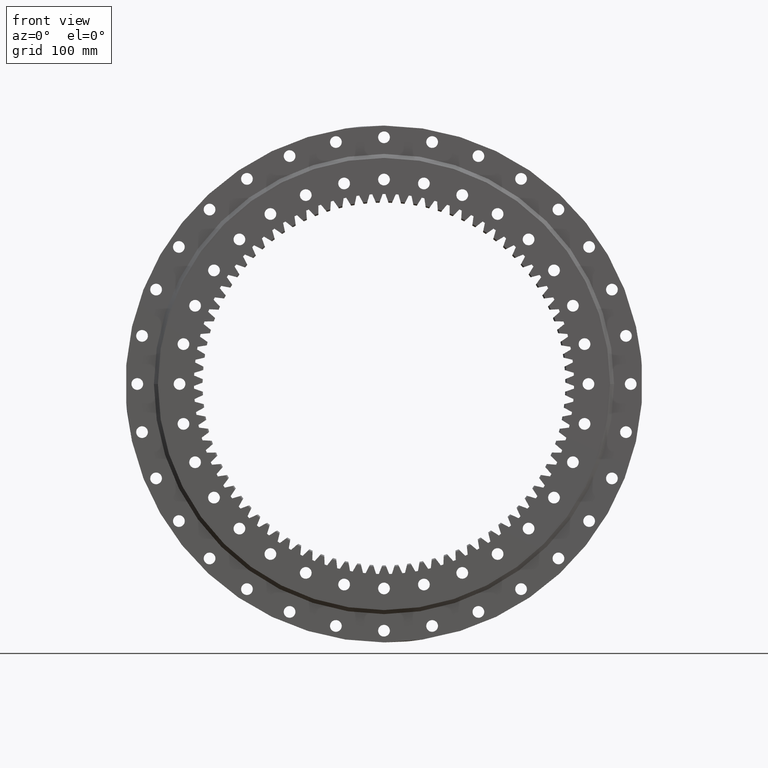
[diagram: clean part render]
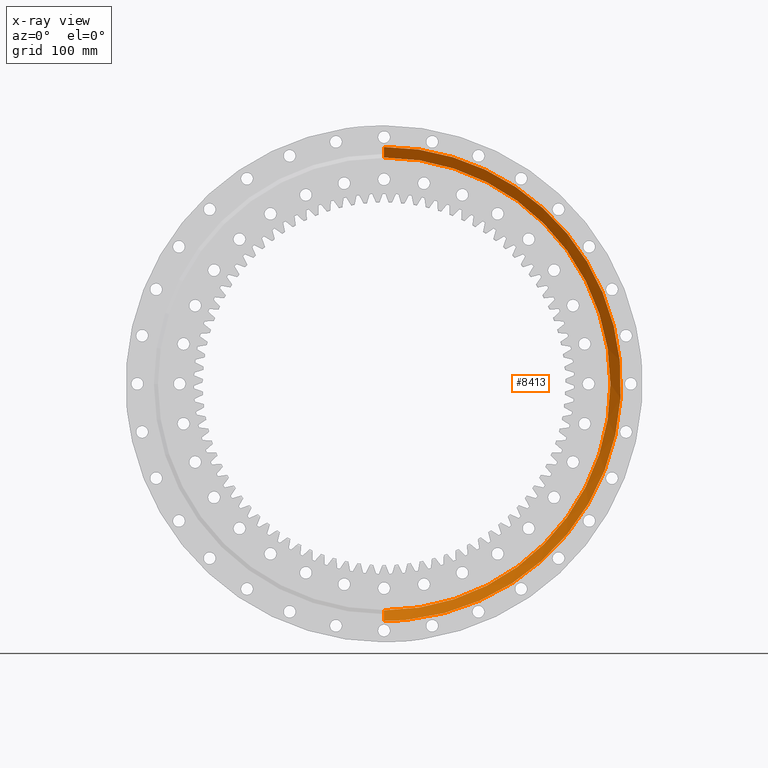
[diagram: x-ray — body ghosted, one internal face saturated and labeled with its STEP entity id]
A machine part, front view, then the same camera in x-ray: the body is ghosted and one INTERNAL B-rep face — a face not visible from any outside direction — is saturated and labeled: STEP entity #8413.
In plain terms, the highlighted conical surface has half-angle 45 deg.
Its self-contained STEP definition (entity closure, byte-faithful):
#273 = AXIS2_PLACEMENT_3D ( 'NONE', #3033, #2492, #16581 ) ;
#797 = DIRECTION ( 'NONE',  ( 1.222452380498864700E-016, -0.7071067811865465700, 0.7071067811865484600 ) ) ;
#2372 = ORIENTED_EDGE ( 'NONE', *, *, #25211, .F. ) ;
#2492 = DIRECTION ( 'NONE',  ( 1.173697223544192200E-016, -1.000000000000000000, -3.494217355385783800E-017 ) ) ;
#3033 = CARTESIAN_POINT ( 'NONE',  ( -8.299292658279184100E-017, 0.7071067811865450200, 2.470784786933003400E-017 ) ) ;
#3403 = EDGE_CURVE ( 'NONE', #6914, #12456, #12807, .T. ) ;
#3722 = CARTESIAN_POINT ( 'NONE',  ( -6.299221011738492400E-014, 0.7071067811865573400, -353.4705627484771100 ) ) ;
#4455 = CARTESIAN_POINT ( 'NONE',  ( 351.8526598586139500, 0.7071067811865146000, 33.78083006889617200 ) ) ;
#5579 = EDGE_CURVE ( 'NONE', #8385, #11852, #12713, .T. ) ;
#5786 = AXIS2_PLACEMENT_3D ( 'NONE', #21324, #20597, #21241 ) ;
#6038 = CARTESIAN_POINT ( 'NONE',  ( 351.8526598586139500, 0.7071067811865146000, 33.78083006889617200 ) ) ;
#6203 = EDGE_CURVE ( 'NONE', #19600, #18151, #9588, .T. ) ;
#6256 = ORIENTED_EDGE ( 'NONE', *, *, #5579, .T. ) ;
#6401 = DIRECTION ( 'NONE',  ( 5.551115123125782700E-017, -3.081670127567977400E-017, 1.000000000000000000 ) ) ;
#6670 = CARTESIAN_POINT ( 'NONE',  ( 1.682078031673055900E-014, 16.42766952966360000, 337.7500000000000000 ) ) ;
#6914 = VERTEX_POINT ( 'NONE', #4455 ) ;
#7208 = CARTESIAN_POINT ( 'NONE',  ( -6.265694948409837400E-014, 16.42766952966362100, -337.7500000000000000 ) ) ;
#8385 = VERTEX_POINT ( 'NONE', #20629 ) ;
#8413 = ADVANCED_FACE ( 'NONE', ( #17869 ), #17595, .F. ) ;
#8491 = CIRCLE ( 'NONE', #10818, 337.7500000000000000 ) ;
#9193 = DIRECTION ( 'NONE',  ( 1.173697223544192200E-016, -1.000000000000000000, -3.494217355385783800E-017 ) ) ;
#9427 = VECTOR ( 'NONE', #19773, 1000.000000000000000 ) ;
#9588 = LINE ( 'NONE', #20054, #9427 ) ;
#9789 = LINE ( 'NONE', #15715, #14365 ) ;
#10818 = AXIS2_PLACEMENT_3D ( 'NONE', #17760, #15462, #6401 ) ;
#11852 = VERTEX_POINT ( 'NONE', #16850 ) ;
#11906 = CARTESIAN_POINT ( 'NONE',  ( 35.51130782267793500, 0.7071067811865696700, -351.6822226761655100 ) ) ;
#12208 = CARTESIAN_POINT ( 'NONE',  ( 351.6284372080659200, 0.8628737007289784000, 34.47912097339632000 ) ) ;
#12296 = CARTESIAN_POINT ( 'NONE',  ( 351.5837771521824500, 0.8632494691912092600, 34.92875327641496600 ) ) ;
#12355 = CARTESIAN_POINT ( 'NONE',  ( 351.6170781883423600, 0.8002342860173168300, 35.22949130054161100 ) ) ;
#12456 = VERTEX_POINT ( 'NONE', #25931 ) ;
#12549 = EDGE_LOOP ( 'NONE', ( #2372, #21415, #13919, #6256, #19322, #13926, #14961, #25468 ) ) ;
#12713 = B_SPLINE_CURVE_WITH_KNOTS ( 'NONE', 3,
 ( #14468, #18297, #14117, #13786, #16834, #16340, #14187, #11906 ),
 .UNSPECIFIED., .F., .F.,
 ( 4, 2, 2, 4 ),
 ( 6.440389093169019200E-007, 0.0004489195040417330900, 0.0008971949691741492800, 0.001793745899439018300 ),
 .UNSPECIFIED. ) ;
#12807 = B_SPLINE_CURVE_WITH_KNOTS ( 'NONE', 3,
 ( #6038, #14451, #17097, #13202, #12208, #12296, #12355, #17889 ),
 .UNSPECIFIED., .F., .F.,
 ( 4, 2, 2, 4 ),
 ( 6.440389090088551000E-007, 0.0004489195040415775600, 0.0008971949691741463500, 0.001793745899439320400 ),
 .UNSPECIFIED. ) ;
#12813 = DIRECTION ( 'NONE',  ( 5.551115123125782700E-017, -3.496728177370125600E-017, 1.000000000000000000 ) ) ;
#12937 = DIRECTION ( 'NONE',  ( 1.173697223544192200E-016, -1.000000000000000000, -3.494217355385783800E-017 ) ) ;
#13005 = DIRECTION ( 'NONE',  ( 5.551115123125782700E-017, -3.496728177370125600E-017, 1.000000000000000000 ) ) ;
#13202 = CARTESIAN_POINT ( 'NONE',  ( 351.6588996775423700, 0.8471263694385720000, 34.32946032958091800 ) ) ;
#13539 = CARTESIAN_POINT ( 'NONE',  ( -8.299292658279184100E-017, 0.7071067811865450200, 2.470784786933003400E-017 ) ) ;
#13786 = CARTESIAN_POINT ( 'NONE',  ( 34.32946032957978100, 0.8471263694384981700, -351.6588996775424800 ) ) ;
#13919 = ORIENTED_EDGE ( 'NONE', *, *, #25414, .T. ) ;
#13926 = ORIENTED_EDGE ( 'NONE', *, *, #3403, .T. ) ;
#14086 = CIRCLE ( 'NONE', #273, 353.4705627484771100 ) ;
#14117 = CARTESIAN_POINT ( 'NONE',  ( 34.04740359154489200, 0.7923124726988987100, -351.7413904134589300 ) ) ;
#14187 = CARTESIAN_POINT ( 'NONE',  ( 35.22949130054016800, 0.8002342860173157200, -351.6170781883424200 ) ) ;
#14365 = VECTOR ( 'NONE', #797, 1000.000000000000000 ) ;
#14444 = CARTESIAN_POINT ( 'NONE',  ( -8.299292658279184100E-017, 0.7071067811865450200, 2.470784786933003400E-017 ) ) ;
#14451 = CARTESIAN_POINT ( 'NONE',  ( 351.7934435184044400, 0.7534982781161163600, 33.91218854274968900 ) ) ;
#14468 = CARTESIAN_POINT ( 'NONE',  ( 33.78083006889521300, 0.7071067811865696700, -351.8526598586139500 ) ) ;
#14961 = ORIENTED_EDGE ( 'NONE', *, *, #25847, .T. ) ;
#15462 = DIRECTION ( 'NONE',  ( 1.173697223544192200E-016, -1.000000000000000000, -3.494217355385783800E-017 ) ) ;
#15715 = CARTESIAN_POINT ( 'NONE',  ( 1.953856493794572800E-014, 0.7071067811865327000, 353.4705627484771100 ) ) ;
#16340 = CARTESIAN_POINT ( 'NONE',  ( 34.92875327641365100, 0.8632494691911505300, -351.5837771521826200 ) ) ;
#16581 = DIRECTION ( 'NONE',  ( 5.551115123125782700E-017, -3.496728177370125600E-017, 1.000000000000000000 ) ) ;
#16834 = CARTESIAN_POINT ( 'NONE',  ( 34.47912097339513300, 0.8628737007289204500, -351.6284372080660900 ) ) ;
#16850 = CARTESIAN_POINT ( 'NONE',  ( 35.51130782267793500, 0.7071067811865696700, -351.6822226761655100 ) ) ;
#17097 = CARTESIAN_POINT ( 'NONE',  ( 351.7413904134588700, 0.7923124726989413400, 34.04740359154595100 ) ) ;
#17595 = CONICAL_SURFACE ( 'NONE', #5786, 353.4705627484771100, 0.7853981633974496100 ) ;
#17760 = CARTESIAN_POINT ( 'NONE',  ( -1.928111011626770700E-015, 16.42766952966361100, 5.740184797909279800E-016 ) ) ;
#17869 = FACE_OUTER_BOUND ( 'NONE', #12549, .T. ) ;
#17889 = CARTESIAN_POINT ( 'NONE',  ( 351.6822226761654500, 0.7071067811865620100, 35.51130782267944900 ) ) ;
#18151 = VERTEX_POINT ( 'NONE', #3722 ) ;
#18297 = CARTESIAN_POINT ( 'NONE',  ( 33.91218854274867300, 0.7534982781161375700, -351.7934435184046700 ) ) ;
#18815 = CIRCLE ( 'NONE', #21901, 353.4705627484771100 ) ;
#19322 = ORIENTED_EDGE ( 'NONE', *, *, #25570, .T. ) ;
#19600 = VERTEX_POINT ( 'NONE', #7208 ) ;
#19773 = DIRECTION ( 'NONE',  ( -4.285499050785183600E-017, -0.7071067811865465700, -0.7071067811865484600 ) ) ;
#20054 = CARTESIAN_POINT ( 'NONE',  ( -6.299221011738492400E-014, 0.7071067811865573400, -353.4705627484771100 ) ) ;
#20408 = CIRCLE ( 'NONE', #22405, 353.4705627484771100 ) ;
#20597 = DIRECTION ( 'NONE',  ( 1.173697223544192200E-016, -1.000000000000000000, -3.494217355385783800E-017 ) ) ;
#20629 = CARTESIAN_POINT ( 'NONE',  ( 33.78083006889521300, 0.7071067811865696700, -351.8526598586139500 ) ) ;
#20661 = CARTESIAN_POINT ( 'NONE',  ( 1.953856493794572800E-014, 0.7071067811865327000, 353.4705627484771100 ) ) ;
#21241 = DIRECTION ( 'NONE',  ( 5.551115123125782700E-017, -3.496728177370125600E-017, 1.000000000000000000 ) ) ;
#21324 = CARTESIAN_POINT ( 'NONE',  ( -8.299292658279184100E-017, 0.7071067811865450200, 2.470784786933003400E-017 ) ) ;
#21415 = ORIENTED_EDGE ( 'NONE', *, *, #6203, .T. ) ;
#21901 = AXIS2_PLACEMENT_3D ( 'NONE', #13539, #12937, #13005 ) ;
#22405 = AXIS2_PLACEMENT_3D ( 'NONE', #14444, #9193, #12813 ) ;
#22467 = VERTEX_POINT ( 'NONE', #20661 ) ;
#23137 = VERTEX_POINT ( 'NONE', #6670 ) ;
#25211 = EDGE_CURVE ( 'NONE', #19600, #23137, #8491, .T. ) ;
#25414 = EDGE_CURVE ( 'NONE', #18151, #8385, #14086, .T. ) ;
#25468 = ORIENTED_EDGE ( 'NONE', *, *, #26009, .F. ) ;
#25570 = EDGE_CURVE ( 'NONE', #11852, #6914, #20408, .T. ) ;
#25847 = EDGE_CURVE ( 'NONE', #12456, #22467, #18815, .T. ) ;
#25931 = CARTESIAN_POINT ( 'NONE',  ( 351.6822226761654500, 0.7071067811865620100, 35.51130782267944900 ) ) ;
#26009 = EDGE_CURVE ( 'NONE', #23137, #22467, #9789, .T. ) ;